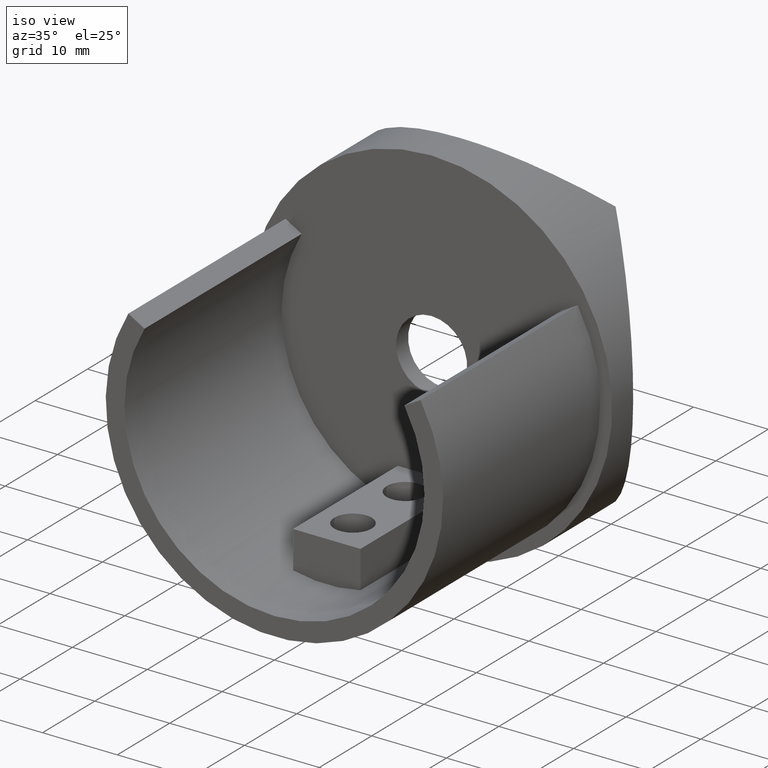
[diagram: clean part render]
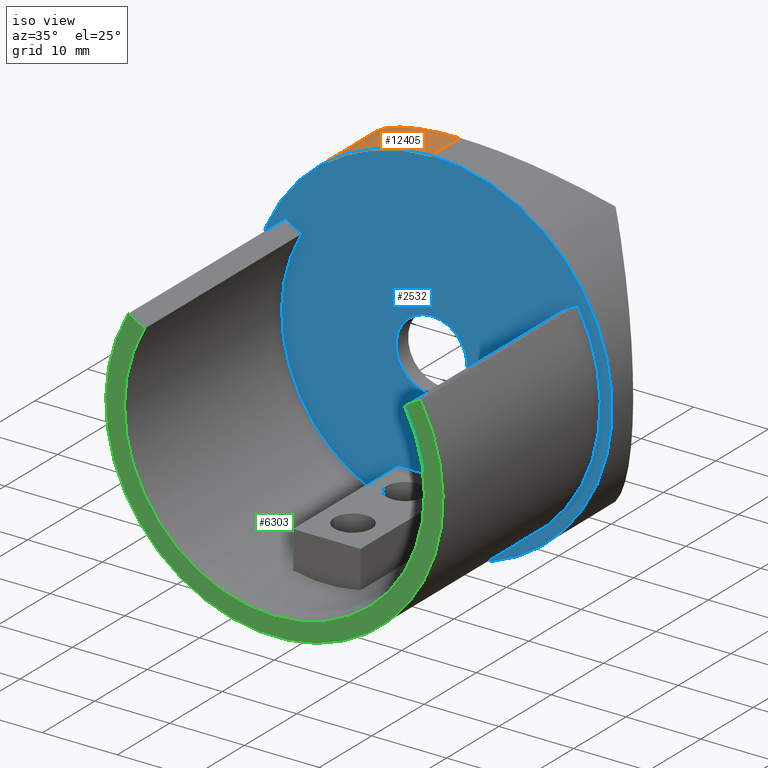
[diagram: same view with three faces highlighted in distinct colors, each labeled with its STEP entity id]
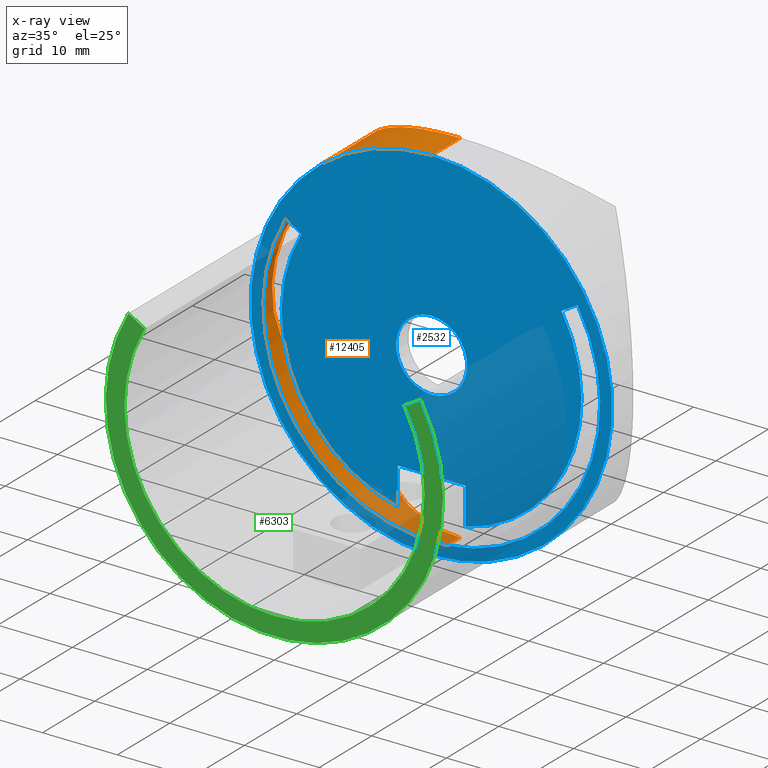
[diagram: x-ray of the same camera — body ghosted, the three highlighted faces saturated]
A machine part, iso view with three faces highlighted in distinct colors.
The next image is the same camera in x-ray (body ghosted, the three faces saturated) — at least one of them is partly hidden behind the body in this view.
Their STEP definitions:

[orange] entity #12405 — the highlighted cylindrical surface (partial cylindrical patch) has radius 24.15 mm, axis along (-0, -1, -0).
#111 = CARTESIAN_POINT ( 'NONE',  ( 2.957522019940857900E-015, 5.499999999999998200, 24.14999999999999900 ) ) ;
#796 = LINE ( 'NONE', #1311, #11167 ) ;
#985 =( BOUNDED_CURVE ( )  B_SPLINE_CURVE ( 3, ( #10957, #6817, #6915, #9806 ),
 .UNSPECIFIED., .F., .F. ) 
 B_SPLINE_CURVE_WITH_KNOTS ( ( 4, 4 ),
 ( 5.453862590081279800, 7.112508024277893500 ),
 .UNSPECIFIED. ) 
 CURVE ( )  GEOMETRIC_REPRESENTATION_ITEM ( )  RATIONAL_B_SPLINE_CURVE ( ( 1.000000000000000000, 0.7835835956976603400, 0.7835835956976603400, 1.000000000000000000 ) ) 
 REPRESENTATION_ITEM ( '' )  );
#995 = ORIENTED_EDGE ( 'NONE', *, *, #11554, .F. ) ;
#1221 = CYLINDRICAL_SURFACE ( 'NONE', #12088, 24.14999999999999900 ) ;
#1311 = CARTESIAN_POINT ( 'NONE',  ( 0.0000000000000000000, 15.00000000000000000, -24.14999999999999900 ) ) ;
#1406 = EDGE_CURVE ( 'NONE', #2411, #6860, #796, .T. ) ;
#1416 = DIRECTION ( 'NONE',  ( -0.0000000000000000000, -1.000000000000000000, -0.0000000000000000000 ) ) ;
#1818 = VERTEX_POINT ( 'NONE', #2044 ) ;
#2044 = CARTESIAN_POINT ( 'NONE',  ( -16.31031575414774400, 11.84000000000000000, 17.80999999999997700 ) ) ;
#2379 = DIRECTION ( 'NONE',  ( 0.0000000000000000000, 0.0000000000000000000, -1.000000000000000000 ) ) ;
#2411 = VERTEX_POINT ( 'NONE', #6027 ) ;
#2900 = CARTESIAN_POINT ( 'NONE',  ( 0.0000000000000000000, 0.0000000000000000000, -24.14999999999999900 ) ) ;
#2908 = EDGE_LOOP ( 'NONE', ( #995, #11199, #4920, #10600, #4160, #8494 ) ) ;
#3203 = CARTESIAN_POINT ( 'NONE',  ( -16.31031575414774400, 11.84000000000000000, 17.80999999999997700 ) ) ;
#3236 = CIRCLE ( 'NONE', #6613, 24.14999999999999900 ) ;
#4013 = DIRECTION ( 'NONE',  ( -0.0000000000000000000, -1.000000000000000000, -0.0000000000000000000 ) ) ;
#4160 = ORIENTED_EDGE ( 'NONE', *, *, #1406, .T. ) ;
#4275 = EDGE_CURVE ( 'NONE', #8993, #1818, #6042, .T. ) ;
#4284 = CARTESIAN_POINT ( 'NONE',  ( 2.957522019940857900E-015, 5.499999999999998200, 24.14999999999999900 ) ) ;
#4342 = EDGE_CURVE ( 'NONE', #1818, #5290, #985, .T. ) ;
#4487 = CARTESIAN_POINT ( 'NONE',  ( -16.31031575414774400, 11.84000000000000000, -17.81000000000000200 ) ) ;
#4920 = ORIENTED_EDGE ( 'NONE', *, *, #4342, .T. ) ;
#5155 = CARTESIAN_POINT ( 'NONE',  ( 0.0000000000000000000, 0.0000000000000000000, 0.0000000000000000000 ) ) ;
#5290 = VERTEX_POINT ( 'NONE', #8106 ) ;
#6027 = CARTESIAN_POINT ( 'NONE',  ( 0.0000000000000000000, 5.500000000000005300, -24.14999999999999900 ) ) ;
#6042 =( BOUNDED_CURVE ( )  B_SPLINE_CURVE ( 3, ( #4284, #6313, #7232, #3203 ),
 .UNSPECIFIED., .F., .T. ) 
 B_SPLINE_CURVE_WITH_KNOTS ( ( 4, 4 ),
 ( 0.0000000000000000000, 0.7414736096965897100 ),
 .UNSPECIFIED. ) 
 CURVE ( )  GEOMETRIC_REPRESENTATION_ITEM ( )  RATIONAL_B_SPLINE_CURVE ( ( 1.000000000000000000, 0.9547071017033887900, 0.9547071017033887900, 1.000000000000000000 ) ) 
 REPRESENTATION_ITEM ( '' )  );
#6313 = CARTESIAN_POINT ( 'NONE',  ( -6.109797078249225200, 5.499999999999998200, 24.14999999999999100 ) ) ;
#6594 = DIRECTION ( 'NONE',  ( -0.0000000000000000000, -1.000000000000000000, -0.0000000000000000000 ) ) ;
#6613 = AXIS2_PLACEMENT_3D ( 'NONE', #5155, #11200, #8087 ) ;
#6817 = CARTESIAN_POINT ( 'NONE',  ( -27.48497038005762900, 0.6648952993884935700, 7.576302897690162300 ) ) ;
#6860 = VERTEX_POINT ( 'NONE', #2900 ) ;
#6915 = CARTESIAN_POINT ( 'NONE',  ( -27.48497038005762900, 0.6648952993884952300, -7.576302897690177400 ) ) ;
#7232 = CARTESIAN_POINT ( 'NONE',  ( -11.80449852998133900, 7.713593393788238800, 21.93640660621175100 ) ) ;
#7330 =( BOUNDED_CURVE ( )  B_SPLINE_CURVE ( 3, ( #4487, #8464, #9681, #10630 ),
 .UNSPECIFIED., .F., .F. ) 
 B_SPLINE_CURVE_WITH_KNOTS ( ( 4, 4 ),
 ( 5.541711697482997000, 6.283185307179586200 ),
 .UNSPECIFIED. ) 
 CURVE ( )  GEOMETRIC_REPRESENTATION_ITEM ( )  RATIONAL_B_SPLINE_CURVE ( ( 1.000000000000000000, 0.9547071017033889100, 0.9547071017033889100, 1.000000000000000000 ) ) 
 REPRESENTATION_ITEM ( '' )  );
#7546 = LINE ( 'NONE', #11910, #12884 ) ;
#8087 = DIRECTION ( 'NONE',  ( 0.0000000000000000000, 0.0000000000000000000, 1.000000000000000000 ) ) ;
#8106 = CARTESIAN_POINT ( 'NONE',  ( -16.31031575414774400, 11.84000000000000000, -17.81000000000000200 ) ) ;
#8287 = CARTESIAN_POINT ( 'NONE',  ( 2.957522019940857900E-015, 0.0000000000000000000, 24.14999999999999900 ) ) ;
#8464 = CARTESIAN_POINT ( 'NONE',  ( -11.80449852998134100, 7.713593393788234400, -21.93640660621176200 ) ) ;
#8494 = ORIENTED_EDGE ( 'NONE', *, *, #9265, .T. ) ;
#8993 = VERTEX_POINT ( 'NONE', #111 ) ;
#9265 = EDGE_CURVE ( 'NONE', #6860, #11018, #3236, .T. ) ;
#9555 = CARTESIAN_POINT ( 'NONE',  ( 0.0000000000000000000, 15.00000000000000000, 0.0000000000000000000 ) ) ;
#9681 = CARTESIAN_POINT ( 'NONE',  ( -6.109797078249222600, 5.499999999999998200, -24.14999999999999900 ) ) ;
#9806 = CARTESIAN_POINT ( 'NONE',  ( -16.31031575414774400, 11.84000000000000000, -17.81000000000000200 ) ) ;
#10600 = ORIENTED_EDGE ( 'NONE', *, *, #12840, .T. ) ;
#10630 = CARTESIAN_POINT ( 'NONE',  ( 0.0000000000000000000, 5.500000000000005300, -24.14999999999999900 ) ) ;
#10957 = CARTESIAN_POINT ( 'NONE',  ( -16.31031575414774400, 11.84000000000000000, 17.80999999999997700 ) ) ;
#11018 = VERTEX_POINT ( 'NONE', #8287 ) ;
#11167 = VECTOR ( 'NONE', #6594, 1000.000000000000000 ) ;
#11199 = ORIENTED_EDGE ( 'NONE', *, *, #4275, .T. ) ;
#11200 = DIRECTION ( 'NONE',  ( 0.0000000000000000000, 1.000000000000000000, 0.0000000000000000000 ) ) ;
#11554 = EDGE_CURVE ( 'NONE', #8993, #11018, #7546, .T. ) ;
#11721 = FACE_OUTER_BOUND ( 'NONE', #2908, .T. ) ;
#11910 = CARTESIAN_POINT ( 'NONE',  ( 2.957522019940857900E-015, 15.00000000000000000, 24.14999999999999900 ) ) ;
#12088 = AXIS2_PLACEMENT_3D ( 'NONE', #9555, #1416, #2379 ) ;
#12405 = ADVANCED_FACE ( 'NONE', ( #11721 ), #1221, .T. ) ;
#12840 = EDGE_CURVE ( 'NONE', #5290, #2411, #7330, .T. ) ;
#12884 = VECTOR ( 'NONE', #4013, 1000.000000000000000 ) ;

[blue] entity #2532 — the highlighted planar face has unit normal (0, 1, 0).
#2 = AXIS2_PLACEMENT_3D ( 'NONE', #7666, #4782, #12634 ) ;
#127 = DIRECTION ( 'NONE',  ( -0.0000000000000000000, 1.000000000000000000, -0.0000000000000000000 ) ) ;
#142 = AXIS2_PLACEMENT_3D ( 'NONE', #9790, #7925, #6754 ) ;
#182 = EDGE_CURVE ( 'NONE', #8906, #8397, #370, .T. ) ;
#370 = LINE ( 'NONE', #556, #8647 ) ;
#464 = FACE_OUTER_BOUND ( 'NONE', #9596, .T. ) ;
#538 = CIRCLE ( 'NONE', #9610, 4.750000000000000000 ) ;
#556 = CARTESIAN_POINT ( 'NONE',  ( -19.52887246546949400, 0.0000000000000000000, 11.27500067527394600 ) ) ;
#649 = CARTESIAN_POINT ( 'NONE',  ( 0.0000000000000000000, 0.0000000000000000000, 0.0000000000000000000 ) ) ;
#795 = CARTESIAN_POINT ( 'NONE',  ( 17.36380895600840200, -0.0000000000000000000, 10.02500067527394400 ) ) ;
#878 = CARTESIAN_POINT ( 'NONE',  ( 0.0000000000000000000, 0.0000000000000000000, -4.750000000000000000 ) ) ;
#1114 = ORIENTED_EDGE ( 'NONE', *, *, #7155, .F. ) ;
#1142 = DIRECTION ( 'NONE',  ( -0.0000000000000000000, -0.0000000000000000000, -1.000000000000000000 ) ) ;
#1424 = DIRECTION ( 'NONE',  ( 0.0000000000000000000, -1.000000000000000000, 0.0000000000000000000 ) ) ;
#1552 = DIRECTION ( 'NONE',  ( -0.8660254037844378200, -0.0000000000000000000, 0.5000000000000014400 ) ) ;
#1569 = CIRCLE ( 'NONE', #12271, 22.55000000000001500 ) ;
#1837 = EDGE_CURVE ( 'NONE', #8397, #6328, #1569, .T. ) ;
#2337 = CARTESIAN_POINT ( 'NONE',  ( 0.0000000000000000000, 0.0000000000000000000, 0.0000000000000000000 ) ) ;
#2532 = ADVANCED_FACE ( 'NONE', ( #10800, #464, #2788 ), #8355, .F. ) ;
#2535 = CIRCLE ( 'NONE', #142, 20.05000000000001500 ) ;
#2788 = FACE_BOUND ( 'NONE', #7949, .T. ) ;
#2900 = CARTESIAN_POINT ( 'NONE',  ( 0.0000000000000000000, 0.0000000000000000000, -24.14999999999999900 ) ) ;
#2967 = DIRECTION ( 'NONE',  ( 0.0000000000000000000, -1.000000000000000000, 0.0000000000000000000 ) ) ;
#3170 = CIRCLE ( 'NONE', #2, 24.14999999999999900 ) ;
#3236 = CIRCLE ( 'NONE', #6613, 24.14999999999999900 ) ;
#3329 = EDGE_CURVE ( 'NONE', #6328, #7117, #5394, .T. ) ;
#3656 = DIRECTION ( 'NONE',  ( -1.000000000000000000, -0.0000000000000000000, -0.0000000000000000000 ) ) ;
#3729 = CARTESIAN_POINT ( 'NONE',  ( -17.36380895600840200, 0.0000000000000000000, 10.02500067527394400 ) ) ;
#4054 = CARTESIAN_POINT ( 'NONE',  ( 0.0000000000000000000, 0.0000000000000000000, 0.0000000000000000000 ) ) ;
#4383 = CARTESIAN_POINT ( 'NONE',  ( 0.0000000000000000000, 0.0000000000000000000, 0.0000000000000000000 ) ) ;
#4520 = ORIENTED_EDGE ( 'NONE', *, *, #3329, .F. ) ;
#4591 = EDGE_CURVE ( 'NONE', #12963, #6082, #538, .T. ) ;
#4664 = CARTESIAN_POINT ( 'NONE',  ( -4.500000000000000000, 0.0000000000000000000, -19.53848765897710700 ) ) ;
#4782 = DIRECTION ( 'NONE',  ( 0.0000000000000000000, 1.000000000000000000, 0.0000000000000000000 ) ) ;
#4813 = AXIS2_PLACEMENT_3D ( 'NONE', #10330, #127, #10209 ) ;
#4941 = DIRECTION ( 'NONE',  ( 0.0000000000000000000, 0.0000000000000000000, -1.000000000000000000 ) ) ;
#5155 = CARTESIAN_POINT ( 'NONE',  ( 0.0000000000000000000, 0.0000000000000000000, 0.0000000000000000000 ) ) ;
#5234 = ORIENTED_EDGE ( 'NONE', *, *, #7044, .F. ) ;
#5279 = EDGE_LOOP ( 'NONE', ( #6835, #1114 ) ) ;
#5310 = DIRECTION ( 'NONE',  ( 0.0000000000000000000, -0.0000000000000000000, 1.000000000000000000 ) ) ;
#5394 = LINE ( 'NONE', #795, #5545 ) ;
#5545 = VECTOR ( 'NONE', #10056, 1000.000000000000000 ) ;
#5647 = EDGE_CURVE ( 'NONE', #12850, #8906, #9764, .T. ) ;
#5687 = CARTESIAN_POINT ( 'NONE',  ( 5.817072295949927400E-016, 0.0000000000000000000, 4.750000000000000000 ) ) ;
#5874 = EDGE_CURVE ( 'NONE', #7117, #6902, #2535, .T. ) ;
#5891 = ORIENTED_EDGE ( 'NONE', *, *, #5874, .F. ) ;
#5915 = ORIENTED_EDGE ( 'NONE', *, *, #9265, .F. ) ;
#6082 = VERTEX_POINT ( 'NONE', #5687 ) ;
#6194 = AXIS2_PLACEMENT_3D ( 'NONE', #649, #8631, #7623 ) ;
#6328 = VERTEX_POINT ( 'NONE', #11799 ) ;
#6613 = AXIS2_PLACEMENT_3D ( 'NONE', #5155, #11200, #8087 ) ;
#6648 = CARTESIAN_POINT ( 'NONE',  ( -4.500000000000000000, 0.0000000000000000000, -14.55000000000001300 ) ) ;
#6754 = DIRECTION ( 'NONE',  ( 0.0000000000000000000, 0.0000000000000000000, -1.000000000000000000 ) ) ;
#6835 = ORIENTED_EDGE ( 'NONE', *, *, #4591, .F. ) ;
#6860 = VERTEX_POINT ( 'NONE', #2900 ) ;
#6880 = CARTESIAN_POINT ( 'NONE',  ( -19.52887246546949400, 0.0000000000000000000, 11.27500067527394600 ) ) ;
#6902 = VERTEX_POINT ( 'NONE', #8226 ) ;
#7044 = EDGE_CURVE ( 'NONE', #8218, #11527, #11636, .T. ) ;
#7117 = VERTEX_POINT ( 'NONE', #11440 ) ;
#7155 = EDGE_CURVE ( 'NONE', #6082, #12963, #10669, .T. ) ;
#7623 = DIRECTION ( 'NONE',  ( 0.0000000000000000000, 0.0000000000000000000, -1.000000000000000000 ) ) ;
#7666 = CARTESIAN_POINT ( 'NONE',  ( 0.0000000000000000000, 0.0000000000000000000, 0.0000000000000000000 ) ) ;
#7747 = DIRECTION ( 'NONE',  ( -0.0000000000000000000, -0.0000000000000000000, 1.000000000000000000 ) ) ;
#7925 = DIRECTION ( 'NONE',  ( -0.0000000000000000000, 1.000000000000000000, -0.0000000000000000000 ) ) ;
#7949 = EDGE_LOOP ( 'NONE', ( #11416, #5234, #8012, #5891, #4520, #11408, #10804, #11839 ) ) ;
#8012 = ORIENTED_EDGE ( 'NONE', *, *, #12016, .F. ) ;
#8087 = DIRECTION ( 'NONE',  ( 0.0000000000000000000, 0.0000000000000000000, 1.000000000000000000 ) ) ;
#8218 = VERTEX_POINT ( 'NONE', #8430 ) ;
#8226 = CARTESIAN_POINT ( 'NONE',  ( 4.500000000000000000, 0.0000000000000000000, -19.53848765897710700 ) ) ;
#8287 = CARTESIAN_POINT ( 'NONE',  ( 2.957522019940857900E-015, 0.0000000000000000000, 24.14999999999999900 ) ) ;
#8297 = VECTOR ( 'NONE', #3656, 1000.000000000000000 ) ;
#8318 = LINE ( 'NONE', #12591, #10086 ) ;
#8355 = PLANE ( 'NONE',  #8646 ) ;
#8397 = VERTEX_POINT ( 'NONE', #6880 ) ;
#8430 = CARTESIAN_POINT ( 'NONE',  ( 4.500000000000000000, 0.0000000000000000000, -14.55000000000001300 ) ) ;
#8631 = DIRECTION ( 'NONE',  ( 0.0000000000000000000, -1.000000000000000000, 0.0000000000000000000 ) ) ;
#8646 = AXIS2_PLACEMENT_3D ( 'NONE', #2337, #12359, #5310 ) ;
#8647 = VECTOR ( 'NONE', #1552, 1000.000000000000100 ) ;
#8906 = VERTEX_POINT ( 'NONE', #3729 ) ;
#9265 = EDGE_CURVE ( 'NONE', #6860, #11018, #3236, .T. ) ;
#9398 = DIRECTION ( 'NONE',  ( 0.0000000000000000000, 0.0000000000000000000, -1.000000000000000000 ) ) ;
#9596 = EDGE_LOOP ( 'NONE', ( #5915, #10262 ) ) ;
#9610 = AXIS2_PLACEMENT_3D ( 'NONE', #4383, #1424, #9398 ) ;
#9764 = CIRCLE ( 'NONE', #4813, 20.05000000000001500 ) ;
#9790 = CARTESIAN_POINT ( 'NONE',  ( 0.0000000000000000000, 0.0000000000000000000, 0.0000000000000000000 ) ) ;
#10056 = DIRECTION ( 'NONE',  ( -0.8660254037844381500, -0.0000000000000000000, -0.5000000000000008900 ) ) ;
#10086 = VECTOR ( 'NONE', #7747, 1000.000000000000000 ) ;
#10209 = DIRECTION ( 'NONE',  ( 0.0000000000000000000, 0.0000000000000000000, -1.000000000000000000 ) ) ;
#10262 = ORIENTED_EDGE ( 'NONE', *, *, #11120, .F. ) ;
#10330 = CARTESIAN_POINT ( 'NONE',  ( 0.0000000000000000000, 0.0000000000000000000, 0.0000000000000000000 ) ) ;
#10669 = CIRCLE ( 'NONE', #6194, 4.750000000000000000 ) ;
#10800 = FACE_BOUND ( 'NONE', #5279, .T. ) ;
#10804 = ORIENTED_EDGE ( 'NONE', *, *, #182, .F. ) ;
#10912 = EDGE_CURVE ( 'NONE', #11527, #12850, #11662, .T. ) ;
#10915 = CARTESIAN_POINT ( 'NONE',  ( -4.500000000000000000, 0.0000000000000000000, -14.55000000000001300 ) ) ;
#11018 = VERTEX_POINT ( 'NONE', #8287 ) ;
#11120 = EDGE_CURVE ( 'NONE', #11018, #6860, #3170, .T. ) ;
#11192 = CARTESIAN_POINT ( 'NONE',  ( -4.500000000000000000, 0.0000000000000000000, -21.05000000000001800 ) ) ;
#11200 = DIRECTION ( 'NONE',  ( 0.0000000000000000000, 1.000000000000000000, 0.0000000000000000000 ) ) ;
#11408 = ORIENTED_EDGE ( 'NONE', *, *, #1837, .F. ) ;
#11416 = ORIENTED_EDGE ( 'NONE', *, *, #10912, .F. ) ;
#11440 = CARTESIAN_POINT ( 'NONE',  ( 17.36380895600840200, -0.0000000000000000000, 10.02500067527394400 ) ) ;
#11527 = VERTEX_POINT ( 'NONE', #10915 ) ;
#11636 = LINE ( 'NONE', #6648, #8297 ) ;
#11662 = LINE ( 'NONE', #11192, #12589 ) ;
#11799 = CARTESIAN_POINT ( 'NONE',  ( 19.52887246546949400, 0.0000000000000000000, 11.27500067527394600 ) ) ;
#11839 = ORIENTED_EDGE ( 'NONE', *, *, #5647, .F. ) ;
#12016 = EDGE_CURVE ( 'NONE', #6902, #8218, #8318, .T. ) ;
#12271 = AXIS2_PLACEMENT_3D ( 'NONE', #4054, #2967, #4941 ) ;
#12359 = DIRECTION ( 'NONE',  ( 0.0000000000000000000, 1.000000000000000000, 0.0000000000000000000 ) ) ;
#12589 = VECTOR ( 'NONE', #1142, 1000.000000000000000 ) ;
#12591 = CARTESIAN_POINT ( 'NONE',  ( 4.500000000000000000, 0.0000000000000000000, -14.55000000000001300 ) ) ;
#12634 = DIRECTION ( 'NONE',  ( 0.0000000000000000000, 0.0000000000000000000, 1.000000000000000000 ) ) ;
#12850 = VERTEX_POINT ( 'NONE', #4664 ) ;
#12963 = VERTEX_POINT ( 'NONE', #878 ) ;

[green] entity #6303 — the highlighted planar face has unit normal (0, -1, 0).
#18 = AXIS2_PLACEMENT_3D ( 'NONE', #8669, #11642, #687 ) ;
#203 = VECTOR ( 'NONE', #9182, 1000.000000000000000 ) ;
#510 = CARTESIAN_POINT ( 'NONE',  ( 0.0000000000000000000, -30.00000000000000000, 0.0000000000000000000 ) ) ;
#687 = DIRECTION ( 'NONE',  ( 0.0000000000000000000, 0.0000000000000000000, -1.000000000000000000 ) ) ;
#746 = EDGE_CURVE ( 'NONE', #10534, #8495, #12545, .T. ) ;
#980 = FACE_OUTER_BOUND ( 'NONE', #11689, .T. ) ;
#2144 = ORIENTED_EDGE ( 'NONE', *, *, #746, .T. ) ;
#2266 = DIRECTION ( 'NONE',  ( -0.8660254037844378200, -0.0000000000000000000, 0.5000000000000014400 ) ) ;
#2417 = CIRCLE ( 'NONE', #10297, 22.55000000000001500 ) ;
#2580 = ORIENTED_EDGE ( 'NONE', *, *, #5753, .T. ) ;
#3194 = VERTEX_POINT ( 'NONE', #3321 ) ;
#3321 = CARTESIAN_POINT ( 'NONE',  ( -19.52887246546949400, -30.00000000000000000, 11.27500067527394600 ) ) ;
#3424 = DIRECTION ( 'NONE',  ( 0.0000000000000000000, 0.0000000000000000000, -1.000000000000000000 ) ) ;
#3803 = EDGE_CURVE ( 'NONE', #3194, #5906, #2417, .T. ) ;
#4100 = LINE ( 'NONE', #12285, #203 ) ;
#4346 = CARTESIAN_POINT ( 'NONE',  ( 0.0000000000000000000, -30.00000000000000000, 0.0000000000000000000 ) ) ;
#4522 = DIRECTION ( 'NONE',  ( 0.0000000000000000000, -1.000000000000000000, 0.0000000000000000000 ) ) ;
#5753 = EDGE_CURVE ( 'NONE', #5906, #10534, #4100, .T. ) ;
#5906 = VERTEX_POINT ( 'NONE', #12410 ) ;
#6303 = ADVANCED_FACE ( 'NONE', ( #980 ), #12499, .T. ) ;
#7216 = CARTESIAN_POINT ( 'NONE',  ( -19.52887246546949400, -30.00000000000000000, 11.27500067527394600 ) ) ;
#7401 = ORIENTED_EDGE ( 'NONE', *, *, #11036, .T. ) ;
#7938 = ORIENTED_EDGE ( 'NONE', *, *, #3803, .T. ) ;
#8081 = CARTESIAN_POINT ( 'NONE',  ( -17.36380895600840200, -30.00000000000000000, 10.02500067527394200 ) ) ;
#8495 = VERTEX_POINT ( 'NONE', #8081 ) ;
#8669 = CARTESIAN_POINT ( 'NONE',  ( 0.0000000000000000000, -30.00000000000000000, 0.0000000000000000000 ) ) ;
#8826 = VECTOR ( 'NONE', #2266, 1000.000000000000100 ) ;
#9182 = DIRECTION ( 'NONE',  ( -0.8660254037844381500, -0.0000000000000000000, -0.5000000000000008900 ) ) ;
#9401 = DIRECTION ( 'NONE',  ( 0.0000000000000000000, -1.000000000000000000, 0.0000000000000000000 ) ) ;
#10297 = AXIS2_PLACEMENT_3D ( 'NONE', #4346, #9401, #3424 ) ;
#10534 = VERTEX_POINT ( 'NONE', #11413 ) ;
#10577 = DIRECTION ( 'NONE',  ( 0.0000000000000000000, -0.0000000000000000000, -1.000000000000000000 ) ) ;
#11036 = EDGE_CURVE ( 'NONE', #8495, #3194, #11523, .T. ) ;
#11321 = AXIS2_PLACEMENT_3D ( 'NONE', #510, #4522, #10577 ) ;
#11413 = CARTESIAN_POINT ( 'NONE',  ( 17.36380895600840200, -30.00000000000000000, 10.02500067527394400 ) ) ;
#11523 = LINE ( 'NONE', #7216, #8826 ) ;
#11642 = DIRECTION ( 'NONE',  ( -0.0000000000000000000, 1.000000000000000000, -0.0000000000000000000 ) ) ;
#11689 = EDGE_LOOP ( 'NONE', ( #2144, #7401, #7938, #2580 ) ) ;
#12285 = CARTESIAN_POINT ( 'NONE',  ( 17.36380895600840200, -30.00000000000000000, 10.02500067527394400 ) ) ;
#12410 = CARTESIAN_POINT ( 'NONE',  ( 19.52887246546949400, -30.00000000000000000, 11.27500067527394900 ) ) ;
#12499 = PLANE ( 'NONE',  #11321 ) ;
#12545 = CIRCLE ( 'NONE', #18, 20.05000000000001500 ) ;